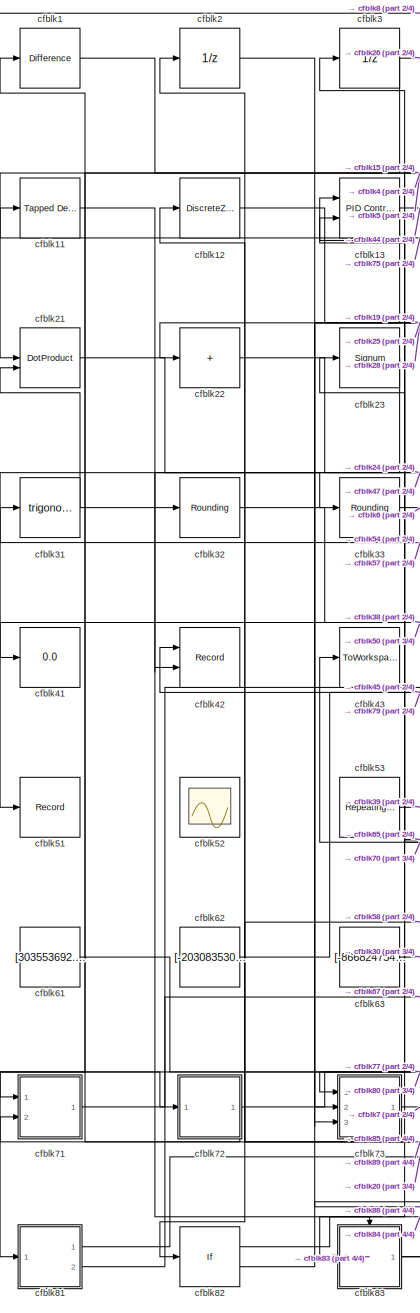
[diagram: root canvas - part 1/4, left side, full height]
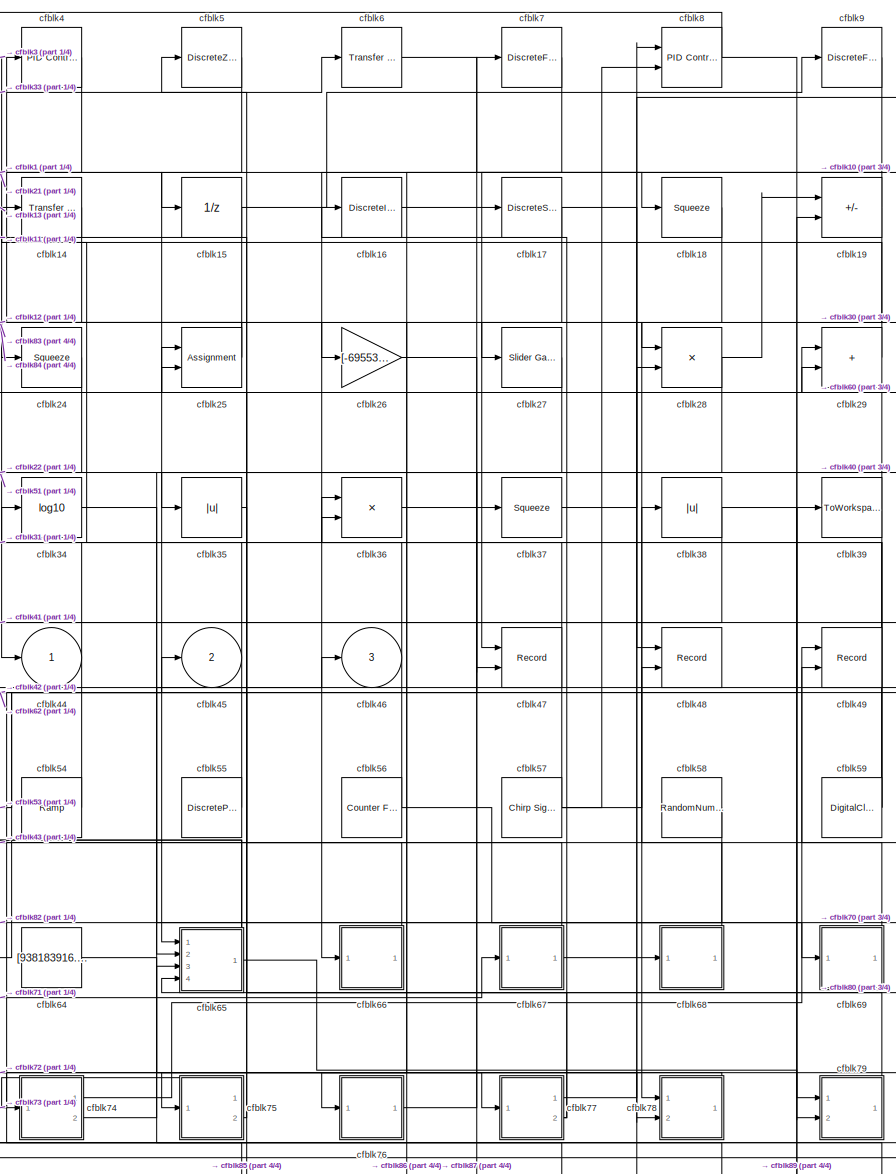
[diagram: root canvas - part 2/4, center side, full height]
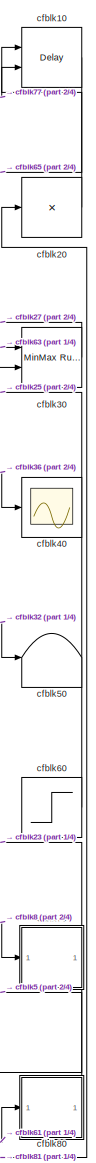
[diagram: root canvas - part 3/4, right side, full height]
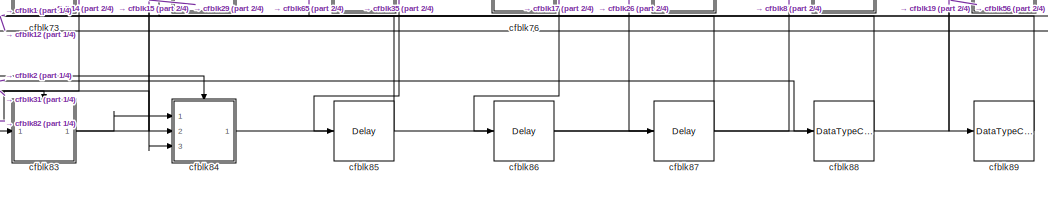
[diagram: root canvas - part 4/4, bottom center region]
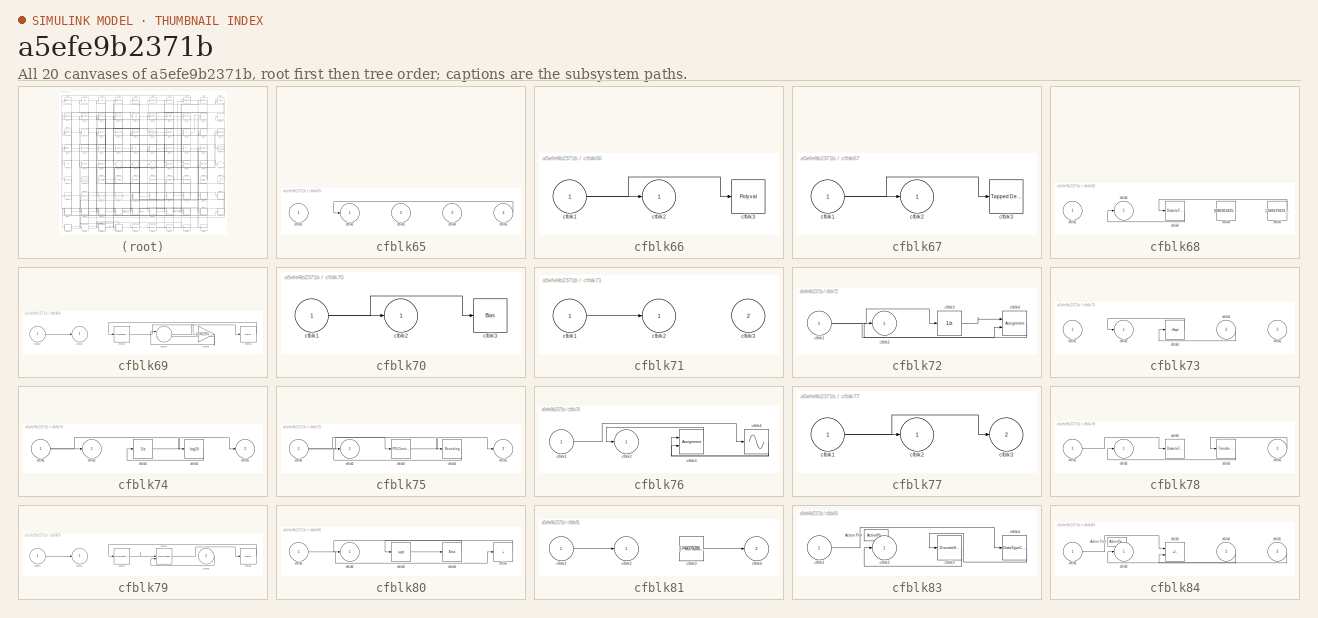
[diagram: thumbnail index - all 20 canvases of the model, root first then tree order]
MODEL slx_a5efe9b2371b
KIND model
CONFIG AbsTol = auto
CONFIG EnableMultiTasking = off
CONFIG FixedStep = auto
CONFIG MaxStep = auto
CONFIG MinStep = auto
CONFIG RelTol = 1e-3
CONFIG SampleTimeConstraint = Unconstrained
CONFIG SolverName = VariableStepAuto
CONFIG StartTime = 0.0
CONFIG StopTime = 10.0
BLOCK [Reference] cfblk1  REF=simulink/Discrete/Difference
  Ports = [1, 1]
  SourceBlock = simulink/Discrete/Difference
  SourceProductBaseCode = SL
  SourceType = Difference
BLOCK [Delay] cfblk10
  DelayLengthSource = Input port
  InputPortMap = u0,p1
  Ports = [2, 1]
  SampleTime = 1
BLOCK [Reference] cfblk11  REF=simulink/Discrete/Tapped Delay
  Ports = [1, 1]
  SourceBlock = simulink/Discrete/Tapped Delay
  SourceProductBaseCode = SL
  SourceType = Tapped Delay Line
BLOCK [DiscreteZeroPole] cfblk12
  Gain = 1
  Poles = [0 0.5]
BLOCK [Reference] cfblk13  REF=slpidlib/PID Controller (2DOF)
  Ports = [2, 1]
  SourceBlock = slpidlib/PID Controller (2DOF)
  SourceProductBaseCode = SL
  SourceType = PID 2dof
BLOCK [Reference] cfblk14  REF=simulink/Discrete/Transfer Fcn
Real Zero
  Ports = [1, 1]
  SourceBlock = simulink/Discrete/Transfer Fcn\nReal Zero
  SourceProductBaseCode = SL
  SourceType = Transfer Fcn Real Zero
BLOCK [UnitDelay] cfblk15
  HasFrameUpgradeWarning = on
BLOCK [DiscreteIntegrator] cfblk16
  ICPrevOutput = DiscIntNeverNeededParam
  ICPrevScaledInput = DiscIntNeverNeededParam
  InitialConditionSetting = Auto
  Ports = [1, 1]
BLOCK [DiscreteStateSpace] cfblk17
BLOCK [Squeeze] cfblk18
BLOCK [Sum] cfblk19
  IconShape = rectangular
  Inputs = --
  Ports = [2, 1]
BLOCK [UnitDelay] cfblk2
  HasFrameUpgradeWarning = on
BLOCK [Product] cfblk20
  Inputs = *
  Ports = [1, 1]
BLOCK [DotProduct] cfblk21
  OutDataTypeStr = Inherit: Inherit via internal rule
BLOCK [Sum] cfblk22
  IconShape = rectangular
  Inputs = +
  Ports = [1, 1]
BLOCK [Signum] cfblk23
BLOCK [Squeeze] cfblk24
BLOCK [Assignment] cfblk25
  DiagnosticForDimensions = Warning
  IndexOptions = Index vector (dialog)
  Indices = 1
  OutputSizes = 1
  Ports = [2, 1]
BLOCK [Gain] cfblk26
  Gain = [-695534286.654844]
BLOCK [Reference] cfblk27  REF=simulink/Math
Operations/Slider
Gain
  Ports = [1, 1]
  SourceBlock = simulink/Math\nOperations/Slider\nGain
  SourceProductBaseCode = SL
  SourceType = Slider Gain
BLOCK [Product] cfblk28
  Inputs = **
  Ports = [2, 1]
BLOCK [Sum] cfblk29
  IconShape = rectangular
  Ports = [2, 1]
BLOCK [UnitDelay] cfblk3
  HasFrameUpgradeWarning = on
BLOCK [Reference] cfblk30  REF=simulink/Math
Operations/MinMax
Running
Resettable
  Ports = [2, 1]
  SourceBlock = simulink/Math\nOperations/MinMax\nRunning\nResettable
  SourceProductBaseCode = SL
  SourceType = MinMax Running Resettable
BLOCK [Trigonometry] cfblk31
  Ports = [1, 1]
BLOCK [Rounding] cfblk32
BLOCK [Rounding] cfblk33
BLOCK [Math] cfblk34
  Operator = log10
  Ports = [1, 1]
BLOCK [Abs] cfblk35
  SaturateOnIntegerOverflow = off
BLOCK [Product] cfblk36
  Ports = [2, 1]
BLOCK [Squeeze] cfblk37
BLOCK [Abs] cfblk38
  SaturateOnIntegerOverflow = off
BLOCK [ToWorkspace] cfblk39
  FixptAsFi = on
  MaxDataPoints = inf
  Ports = [1]
  SampleTime = -1
  SaveFormat = Timeseries
  VariableName = tcuungb
BLOCK [Reference] cfblk4  REF=slpidlib/PID Controller
  Ports = [1, 1]
  SourceBlock = slpidlib/PID Controller
  SourceProductBaseCode = SL
  SourceType = PID 1dof
BLOCK [Scope] cfblk40
  Floating = off
  NumInputPorts = 1
  Ports = [1]
BLOCK [Display] cfblk41
  Decimation = 1
  Ports = [1]
BLOCK [Record] cfblk42
  CompatibilityTag = XY
  FileSettingsInternal = {"entries":[{"content":{"excelSettings":{"content":{},"type":"Streamout.ExcelSettings"}},"type":"Streamout.FileSettingStorage","uuid":"e9bfc827-84cd-43ef-a664-5009a45e0491"}],"packageUris":["http://schema.mathworks.com/mf0/streamout_blocks/R2020a"],"version":"1.0"}
  Layout = [1 1]
  Ports = [2]
  SignalsInternal = {"entries":[{"content":{"signals":[{"content":{"blockPath":["sampleModel13/cfblk42"],"channel":[],"dimensions":[1],"domain":"sampleModel13/cfblk42","lineColor":"#a2142f","plots":[1],"port":1,"sid":[""],"signalID":525,"signalName":"cfblk79"},"type":"RecordBlkView.Signal","uuid":"7c6a9f3b-0145-4b1e-bec1-7fc3d7066293"},{"content":{"blockPath":["sampleModel13/cfblk42"],"channel":[],"dimensions":[1],"d...<+377ch>
  VisualizationBindings = {"xyplotplugin":{"info":[{"series":[{"bindingParametersList":[{"parameter":"X-Axis","signalID":525,"signalName":"cfblk79"},{"parameter":"Y-Axis","signalID":529,"signalName":"cfblk23"}],"seriesID":34704}],"subplotID":1}]}}
BLOCK [ToWorkspace] cfblk43
  FixptAsFi = on
  MaxDataPoints = inf
  Ports = [1]
  SampleTime = -1
  SaveFormat = Timeseries
  VariableName = qabdlrw
BLOCK [Outport] cfblk44
BLOCK [Outport] cfblk45
  Port = 2
BLOCK [Outport] cfblk46
  Port = 3
BLOCK [Record] cfblk47
  CompatibilityTag = XY
  FileSettingsInternal = {"entries":[{"content":{"excelSettings":{"content":{},"type":"Streamout.ExcelSettings"}},"type":"Streamout.FileSettingStorage","uuid":"d26ff546-9c53-4afb-8b40-64bc20b1f95b"}],"packageUris":["http://schema.mathworks.com/mf0/streamout_blocks/R2020a"],"version":"1.0"}
  Layout = [1 1]
  Ports = [2]
  SignalsInternal = {"entries":[{"content":{"signals":[{"content":{"blockPath":["sampleModel13/cfblk47"],"channel":[],"dimensions":[1],"domain":"sampleModel13/cfblk47","lineColor":"#a2142f","plots":[1],"port":1,"sid":[""],"signalID":533,"signalName":"cfblk16"},"type":"RecordBlkView.Signal","uuid":"e2af501a-2b88-48ca-989d-f3ec0a755c22"},{"content":{"blockPath":["sampleModel13/cfblk47"],"channel":[],"dimensions":[1],"d...<+377ch>
  VisualizationBindings = {"xyplotplugin":{"info":[{"series":[{"bindingParametersList":[{"parameter":"X-Axis","signalID":533,"signalName":"cfblk16"},{"parameter":"Y-Axis","signalID":537,"signalName":"cfblk22"}],"seriesID":25821}],"subplotID":1}]}}
BLOCK [Record] cfblk48
  CompatibilityTag = XY
  FileSettingsInternal = {"entries":[{"content":{"excelSettings":{"content":{},"type":"Streamout.ExcelSettings"}},"type":"Streamout.FileSettingStorage","uuid":"84ac7db2-e39d-4170-a59e-58bceac4e3d5"}],"packageUris":["http://schema.mathworks.com/mf0/streamout_blocks/R2020a"],"version":"1.0"}
  Layout = [1 1]
  Ports = [2]
  SignalsInternal = {"entries":[{"content":{"signals":[{"content":{"blockPath":["sampleModel13/cfblk48"],"channel":[],"dimensions":[1],"domain":"sampleModel13/cfblk48","lineColor":"#a2142f","plots":[1],"port":1,"sid":[""],"signalID":541,"signalName":"cfblk17"},"type":"RecordBlkView.Signal","uuid":"dc910b5f-9720-4168-a4d2-2d61a674a1f4"},{"content":{"blockPath":["sampleModel13/cfblk48"],"channel":[],"dimensions":[1],"d...<+377ch>
  VisualizationBindings = {"xyplotplugin":{"info":[{"series":[{"bindingParametersList":[{"parameter":"X-Axis","signalID":541,"signalName":"cfblk17"},{"parameter":"Y-Axis","signalID":545,"signalName":"cfblk57"}],"seriesID":20993}],"subplotID":1}]}}
BLOCK [Record] cfblk49
  CompatibilityTag = XY
  FileSettingsInternal = {"entries":[{"content":{"excelSettings":{"content":{},"type":"Streamout.ExcelSettings"}},"type":"Streamout.FileSettingStorage","uuid":"d39809e0-c0c4-468a-82ea-ae73fdf320d9"}],"packageUris":["http://schema.mathworks.com/mf0/streamout_blocks/R2020a"],"version":"1.0"}
  Layout = [1 1]
  Ports = [2]
  SignalsInternal = {"entries":[{"content":{"signals":[{"content":{"blockPath":["sampleModel13/cfblk49"],"channel":[],"dimensions":[1],"domain":"sampleModel13/cfblk49","lineColor":"#a2142f","plots":[1],"port":1,"sid":[""],"signalID":561,"signalName":"cfblk74:1"},"type":"RecordBlkView.Signal","uuid":"820104ea-1f0b-444c-b7ec-f69593188683"},{"content":{"blockPath":["sampleModel13/cfblk49"],"channel":[],"dimensions":[1],...<+379ch>
  VisualizationBindings = {"xyplotplugin":{"info":[{"series":[{"bindingParametersList":[{"parameter":"X-Axis","signalID":561,"signalName":"cfblk74:1"},{"parameter":"Y-Axis","signalID":565,"signalName":"cfblk69"}],"seriesID":46801}],"subplotID":1}]}}
BLOCK [DiscreteZeroPole] cfblk5
  Gain = 1
  Poles = [0 0.5]
BLOCK [Terminator] cfblk50
BLOCK [Record] cfblk51
  FileSettingsInternal = {"entries":[{"content":{"excelSettings":{"content":{},"type":"Streamout.ExcelSettings"}},"type":"Streamout.FileSettingStorage","uuid":"9c6b9cda-3d95-4183-848a-e524a85caf7d"}],"packageUris":["http://schema.mathworks.com/mf0/streamout_blocks/R2020a"],"version":"1.0"}
  Ports = [1]
  SignalsInternal = {"entries":[{"content":{"signals":[{"content":{"blockPath":["sampleModel13/cfblk51"],"channel":[],"dimensions":[1],"domain":"sampleModel13/cfblk51","lineColor":"#4dbeee","plots":[1],"port":1,"sid":[""],"signalID":549,"signalName":"cfblk24"},"type":"RecordBlkView.Signal","uuid":"9af92a03-3abb-4f5c-b072-6b69d8a9a553"}]},"type":"RecordBlkView.InputSignals","uuid":"b6327323-7065-4157-aefa-aec12f4f8419...<+94ch>
  VisualizationBindings = {"sparklinesplugin":{"info":[{"bindingParametersList":[],"subplotID":1}]}}
BLOCK [Scope] cfblk52
  Floating = on
  NumInputPorts = 1
  Ports = []
BLOCK [Reference] cfblk53  REF=simulink/Sources/Repeating
Sequence
Stair
  Ports = [0, 1]
  SourceBlock = simulink/Sources/Repeating\nSequence\nStair
  SourceProductBaseCode = SL
  SourceType = Repeating Sequence Stair
BLOCK [Reference] cfblk54  REF=simulink/Sources/Ramp
  Ports = [0, 1]
  SourceBlock = simulink/Sources/Ramp
  SourceProductBaseCode = SL
  SourceType = Ramp
BLOCK [DiscretePulseGenerator] cfblk55
  Amplitude = [-421699013.647603]
  Period = [49786801.570837]
  PhaseDelay = [8.000000]
  Ports = [0, 1]
  PulseType = Time based
  PulseWidth = 5
BLOCK [Reference] cfblk56  REF=simulink/Sources/Counter
Free-Running
  Ports = [0, 1]
  SourceBlock = simulink/Sources/Counter\nFree-Running
  SourceProductBaseCode = SL
  SourceType = Counter Free-Running
BLOCK [Reference] cfblk57  REF=simulink/Sources/Chirp Signal
  Ports = [0, 1]
  SourceBlock = simulink/Sources/Chirp Signal
  SourceProductBaseCode = SL
  SourceType = chirp
BLOCK [RandomNumber] cfblk58
  Mean = [58801.248137]
  SampleTime = 0.1
  Seed = [462606736.000000]
  Variance = [34320.822051]
BLOCK [DigitalClock] cfblk59
BLOCK [Reference] cfblk6  REF=simulink/Discrete/Transfer Fcn
First Order
  Ports = [1, 1]
  SourceBlock = simulink/Discrete/Transfer Fcn\nFirst Order
  SourceProductBaseCode = SL
  SourceType = First Order Transfer Fcn
BLOCK [Step] cfblk60
  After = [135558063.741372]
  Before = [359141239.208511]
  SampleTime = 0
  Time = [19.000000]
BLOCK [Constant] cfblk61
  SampleTime = 1
  Value = [303553692.261086]
BLOCK [Constant] cfblk62
  SampleTime = 1
  Value = [-203083530.176389]
BLOCK [Constant] cfblk63
  SampleTime = 1
  Value = [-866824754.096789]
BLOCK [Constant] cfblk64
  SampleTime = 1
  Value = [938183916.908952]
BLOCK [SubSystem] cfblk65
  Ports = [4, 1]
  RequestExecContextInheritance = off
BLOCK [Inport] cfblk65/cfblk1
BLOCK [Outport] cfblk65/cfblk2
BLOCK [Inport] cfblk65/cfblk3
  Port = 2
BLOCK [Inport] cfblk65/cfblk4
  Port = 3
BLOCK [Inport] cfblk65/cfblk5
  Port = 4
BLOCK [SubSystem] cfblk66
  Ports = [1, 1]
  RequestExecContextInheritance = off
BLOCK [Inport] cfblk66/cfblk1
BLOCK [Outport] cfblk66/cfblk2
BLOCK [Polyval] cfblk66/cfblk3
  Coefs = [ +2.081618890e-019, -1.441693666e-014, +4.719686976e-010, -8.536869453e-006, +1.621573104e-001, -8.087801117e+001 ]
BLOCK [SubSystem] cfblk67
  Ports = [1, 1]
  RequestExecContextInheritance = off
BLOCK [Inport] cfblk67/cfblk1
BLOCK [Outport] cfblk67/cfblk2
BLOCK [Reference] cfblk67/cfblk3  REF=simulink/Discrete/Tapped Delay
  Ports = [1, 1]
  SourceBlock = simulink/Discrete/Tapped Delay
  SourceProductBaseCode = SL
  SourceType = Tapped Delay Line
BLOCK [SubSystem] cfblk68
  Ports = [1, 1]
  RequestExecContextInheritance = off
BLOCK [Inport] cfblk68/cfblk1
BLOCK [Outport] cfblk68/cfblk2
BLOCK [DiscreteFir] cfblk68/cfblk3
  InputPortMap = u0
  OutputPortMap = o0
  Ports = [1, 1]
  SampleTime = 1
BLOCK [Constant] cfblk68/cfblk4
  SampleTime = 1
  Value = [686361825.741774]
BLOCK [Constant] cfblk68/cfblk5
  SampleTime = 1
  Value = [-946279231.694788]
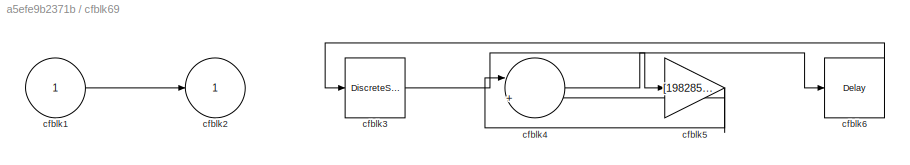
BLOCK [SubSystem] cfblk69
  Ports = [1, 1]
  RequestExecContextInheritance = off
BLOCK [Inport] cfblk69/cfblk1
BLOCK [Outport] cfblk69/cfblk2
BLOCK [DiscreteStateSpace] cfblk69/cfblk3
BLOCK [Sum] cfblk69/cfblk4
  Inputs = |++
  Ports = [2, 1]
BLOCK [Gain] cfblk69/cfblk5
  Gain = [198285018.617187]
BLOCK [Delay] cfblk69/cfblk6
  InputPortMap = u0
  Ports = [1, 1]
  SampleTime = 1
BLOCK [DiscreteFilter] cfblk7
  InputPortMap = u0
  Ports = [1, 1]
  SampleTime = 1
BLOCK [SubSystem] cfblk70
  Ports = [1, 1]
  RequestExecContextInheritance = off
BLOCK [Inport] cfblk70/cfblk1
BLOCK [Outport] cfblk70/cfblk2
BLOCK [Bias] cfblk70/cfblk3
  Bias = [929701414.537709]
  SaturateOnIntegerOverflow = off
BLOCK [SubSystem] cfblk71
  Ports = [2, 1]
  RequestExecContextInheritance = off
BLOCK [Inport] cfblk71/cfblk1
BLOCK [Outport] cfblk71/cfblk2
BLOCK [Inport] cfblk71/cfblk3
  Port = 2
BLOCK [SubSystem] cfblk72
  Ports = [1, 1]
  RequestExecContextInheritance = off
BLOCK [Inport] cfblk72/cfblk1
BLOCK [Outport] cfblk72/cfblk2
BLOCK [UnitDelay] cfblk72/cfblk3
  HasFrameUpgradeWarning = on
BLOCK [Assignment] cfblk72/cfblk4
  DiagnosticForDimensions = Warning
  IndexOptions = Index vector (dialog)
  Indices = 1
  OutputSizes = 1
  Ports = [2, 1]
BLOCK [SubSystem] cfblk73
  Ports = [3, 1]
  RequestExecContextInheritance = off
BLOCK [Inport] cfblk73/cfblk1
BLOCK [Outport] cfblk73/cfblk2
BLOCK [Sqrt] cfblk73/cfblk3
  AlgorithmType = Newton-Raphson
  Operator = rSqrt
BLOCK [Inport] cfblk73/cfblk4
  Port = 2
BLOCK [Inport] cfblk73/cfblk5
  Port = 3
BLOCK [SubSystem] cfblk74
  Ports = [1, 2]
  RequestExecContextInheritance = off
BLOCK [Inport] cfblk74/cfblk1
BLOCK [Outport] cfblk74/cfblk2
BLOCK [UnitDelay] cfblk74/cfblk3
  HasFrameUpgradeWarning = on
BLOCK [Math] cfblk74/cfblk4
  Operator = log10
  Ports = [1, 1]
BLOCK [Outport] cfblk74/cfblk5
  Port = 2
BLOCK [SubSystem] cfblk75
  Ports = [1, 2]
  RequestExecContextInheritance = off
BLOCK [Inport] cfblk75/cfblk1
BLOCK [Outport] cfblk75/cfblk2
BLOCK [Reference] cfblk75/cfblk3  REF=slpidlib/PID Controller
  Ports = [1, 1]
  SourceBlock = slpidlib/PID Controller
  SourceProductBaseCode = SL
  SourceType = PID 1dof
BLOCK [Rounding] cfblk75/cfblk4
BLOCK [Outport] cfblk75/cfblk5
  Port = 2
BLOCK [SubSystem] cfblk76
  Ports = [1, 1]
  RequestExecContextInheritance = off
BLOCK [Inport] cfblk76/cfblk1
BLOCK [Outport] cfblk76/cfblk2
BLOCK [Assignment] cfblk76/cfblk3
  DiagnosticForDimensions = Warning
  IndexOptions = Index vector (dialog)
  Indices = 1
  OutputSizes = 1
  Ports = [2, 1]
BLOCK [Sin] cfblk76/cfblk4
  Ports = [1, 1]
  SampleTime = 0
  TimeSource = Use external signal
BLOCK [SubSystem] cfblk77
  Ports = [1, 2]
  RequestExecContextInheritance = off
BLOCK [Inport] cfblk77/cfblk1
BLOCK [Outport] cfblk77/cfblk2
BLOCK [Outport] cfblk77/cfblk3
  Port = 2
BLOCK [SubSystem] cfblk78
  Ports = [2, 1]
  RequestExecContextInheritance = off
BLOCK [Inport] cfblk78/cfblk1
BLOCK [Outport] cfblk78/cfblk2
BLOCK [DiscreteFilter] cfblk78/cfblk3
  InputPortMap = u0
  Ports = [1, 1]
  SampleTime = 1
BLOCK [Reference] cfblk78/cfblk4  REF=simulink/Discrete/Transfer Fcn
Lead or Lag
  Ports = [1, 1]
  SourceBlock = simulink/Discrete/Transfer Fcn\nLead or Lag
  SourceProductBaseCode = SL
  SourceType = Lead or Lag Compensator
BLOCK [Inport] cfblk78/cfblk5
  Port = 2
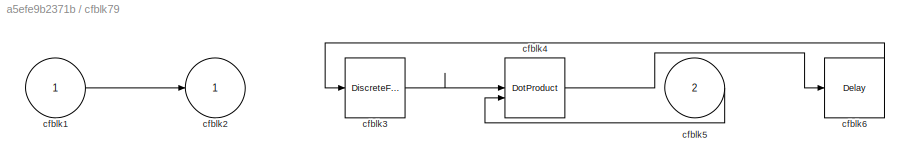
BLOCK [SubSystem] cfblk79
  Ports = [2, 1]
  RequestExecContextInheritance = off
BLOCK [Inport] cfblk79/cfblk1
BLOCK [Outport] cfblk79/cfblk2
BLOCK [DiscreteFir] cfblk79/cfblk3
  InputPortMap = u0
  OutputPortMap = o0
  Ports = [1, 1]
  SampleTime = 1
BLOCK [DotProduct] cfblk79/cfblk4
  OutDataTypeStr = Inherit: Inherit via internal rule
BLOCK [Inport] cfblk79/cfblk5
  Port = 2
BLOCK [Delay] cfblk79/cfblk6
  InputPortMap = u0
  Ports = [1, 1]
  SampleTime = 1
BLOCK [Reference] cfblk8  REF=slpidlib/PID Controller (2DOF)
  Ports = [2, 1]
  SourceBlock = slpidlib/PID Controller (2DOF)
  SourceProductBaseCode = SL
  SourceType = PID 2dof
BLOCK [SubSystem] cfblk80
  Ports = [1, 1]
  RequestExecContextInheritance = off
BLOCK [Inport] cfblk80/cfblk1
BLOCK [Outport] cfblk80/cfblk2
BLOCK [Sqrt] cfblk80/cfblk3
BLOCK [Bias] cfblk80/cfblk4
  Bias = [-420727828.243721]
  SaturateOnIntegerOverflow = off
BLOCK [Sum] cfblk80/cfblk5
  IconShape = rectangular
  Inputs = +
  Ports = [1, 1]
BLOCK [SubSystem] cfblk81
  Ports = [1, 2]
  RequestExecContextInheritance = off
BLOCK [Inport] cfblk81/cfblk1
BLOCK [Outport] cfblk81/cfblk2
BLOCK [Constant] cfblk81/cfblk3
  SampleTime = 1
  Value = [-749079286.719940]
BLOCK [Outport] cfblk81/cfblk4
  Port = 2
BLOCK [If] cfblk82
  IfExpression = u1 >= 0
  Ports = [1, 2]
  SampleTime = 1
BLOCK [SubSystem] cfblk83
  Ports = [1, 1, 0, 0, 0, 0, 0, 1]
  RequestExecContextInheritance = off
  TreatAsAtomicUnit = on
BLOCK [ActionPort] cfblk83/Action Port
  ActionPortLabel = if(u1 >= 0)
BLOCK [Inport] cfblk83/cfblk1
BLOCK [Outport] cfblk83/cfblk2
BLOCK [DiscreteStateSpace] cfblk83/cfblk3
  SampleTime = -1
BLOCK [DataTypeConversion] cfblk83/cfblk4
  RndMeth = Floor
  SaturateOnIntegerOverflow = off
BLOCK [SubSystem] cfblk84
  Ports = [3, 1, 0, 0, 0, 0, 0, 1]
  RequestExecContextInheritance = off
  TreatAsAtomicUnit = on
BLOCK [ActionPort] cfblk84/Action Port
  ActionPortLabel = else
BLOCK [Inport] cfblk84/cfblk1
BLOCK [Outport] cfblk84/cfblk2
BLOCK [Sum] cfblk84/cfblk3
  IconShape = rectangular
  Inputs = -+
  Ports = [2, 1]
BLOCK [Inport] cfblk84/cfblk4
  Port = 2
BLOCK [Inport] cfblk84/cfblk5
  Port = 3
BLOCK [Delay] cfblk85
  InputPortMap = u0
  Ports = [1, 1]
  SampleTime = 1
BLOCK [Delay] cfblk86
  InputPortMap = u0
  Ports = [1, 1]
  SampleTime = 1
BLOCK [Delay] cfblk87
  InputPortMap = u0
  Ports = [1, 1]
  SampleTime = 1
BLOCK [DataTypeConversion] cfblk88
  RndMeth = Floor
  SaturateOnIntegerOverflow = off
BLOCK [DataTypeConversion] cfblk89
  RndMeth = Floor
  SaturateOnIntegerOverflow = off
BLOCK [DiscreteFilter] cfblk9
  InputPortMap = u0
  Ports = [1, 1]
  SampleTime = 1
LINE cfblk10:1 -> cfblk65:1
LINE cfblk11:1 -> cfblk32:1
LINE cfblk12:1 -> cfblk28:1
NET cfblk13:1 -> cfblk44:1, cfblk73:3
LINE cfblk14:1 -> cfblk83:1
NET cfblk15:1 -> cfblk84:3, cfblk9:1
LINE cfblk16:1 -> cfblk47:1
NET cfblk17:1 -> cfblk48:1, cfblk86:1
LINE cfblk18:1 -> cfblk78:1
NET cfblk19:1 -> cfblk17:1, cfblk73:2
LINE cfblk1:1 -> cfblk15:1
LINE cfblk20:1 -> cfblk10:2
LINE cfblk21:1 -> cfblk33:1
LINE cfblk22:1 -> cfblk47:2
LINE cfblk23:1 -> cfblk42:2
LINE cfblk24:1 -> cfblk51:1
NET cfblk25:1 -> cfblk22:1, cfblk24:1
LINE cfblk26:1 -> cfblk87:1
LINE cfblk27:1 -> cfblk65:2
NET cfblk28:1 -> cfblk19:1, cfblk35:1
LINE cfblk29:1 -> cfblk4:1
LINE cfblk2:1 -> cfblk88:1
LINE cfblk30:1 -> cfblk27:1
NET cfblk31:1 -> cfblk21:2, cfblk84:2
LINE cfblk32:1 -> cfblk50:1
LINE cfblk33:1 -> cfblk6:1
LINE cfblk34:1 -> cfblk69:1
LINE cfblk35:1 -> cfblk85:1
LINE cfblk36:1 -> cfblk40:1
LINE cfblk37:1 -> cfblk28:2
NET cfblk38:1 -> cfblk41:1, cfblk79:1
NET cfblk3:1 -> cfblk26:1, cfblk71:1
LINE cfblk4:1 -> cfblk73:1
LINE cfblk53:1 -> cfblk39:1
LINE cfblk54:1 -> cfblk13:1
LINE cfblk55:1 -> cfblk34:1
NET cfblk56:1 -> cfblk14:1, cfblk89:1
NET cfblk57:1 -> cfblk31:1, cfblk48:2, cfblk8:2
LINE cfblk58:1 -> cfblk82:1
NET cfblk59:1 -> cfblk29:1, cfblk36:1, cfblk36:2
LINE cfblk5:1 -> cfblk21:1
LINE cfblk60:1 -> cfblk25:1
LINE cfblk61:1 -> cfblk80:1
LINE cfblk62:1 -> cfblk45:1
LINE cfblk63:1 -> cfblk30:1
LINE cfblk64:1 -> cfblk78:2
LINE cfblk65/cfblk5:1 -> cfblk65/cfblk2:1
NET cfblk65:1 -> cfblk13:2, cfblk3:1, cfblk79:2
NET cfblk66/cfblk1:1 -> cfblk66/cfblk2:1, cfblk66/cfblk3:1
LINE cfblk66:1 -> cfblk25:2
NET cfblk67/cfblk1:1 -> cfblk67/cfblk2:1, cfblk67/cfblk3:1
NET cfblk67:1 -> cfblk43:1, cfblk68:1
LINE cfblk68/cfblk3:1 -> cfblk68/cfblk2:1
LINE cfblk68/cfblk5:1 -> cfblk68/cfblk3:1
LINE cfblk68:1 -> cfblk38:1
LINE cfblk69/cfblk1:1 -> cfblk69/cfblk2:1
LINE cfblk69/cfblk3:1 -> cfblk69/cfblk5:1
LINE cfblk69/cfblk4:1 -> cfblk69/cfblk6:1
NET cfblk69/cfblk5:1 -> cfblk69/cfblk4:1, cfblk69/cfblk4:2
LINE cfblk69/cfblk6:1 -> cfblk69/cfblk3:1
LINE cfblk69:1 -> cfblk49:2
LINE cfblk6:1 -> cfblk18:1
NET cfblk70/cfblk1:1 -> cfblk70/cfblk2:1, cfblk70/cfblk3:1
NET cfblk70:1 -> cfblk23:1, cfblk81:1
LINE cfblk71/cfblk1:1 -> cfblk71/cfblk2:1
LINE cfblk71:1 -> cfblk67:1
NET cfblk72/cfblk1:1 -> cfblk72/cfblk3:1, cfblk72/cfblk4:2
LINE cfblk72/cfblk3:1 -> cfblk72/cfblk4:1
LINE cfblk72/cfblk4:1 -> cfblk72/cfblk2:1
NET cfblk72:1 -> cfblk71:2, cfblk77:1
LINE cfblk73/cfblk3:1 -> cfblk73/cfblk2:1
LINE cfblk73/cfblk4:1 -> cfblk73/cfblk3:1
LINE cfblk73:1 -> cfblk7:1
NET cfblk74/cfblk1:1 -> cfblk74/cfblk2:1, cfblk74/cfblk4:1
LINE cfblk74/cfblk3:1 -> cfblk74/cfblk5:1
LINE cfblk74/cfblk4:1 -> cfblk74/cfblk3:1
LINE cfblk74:1 -> cfblk49:1
LINE cfblk74:2 -> cfblk46:1
NET cfblk75/cfblk1:1 -> cfblk75/cfblk3:1, cfblk75/cfblk4:1
LINE cfblk75/cfblk3:1 -> cfblk75/cfblk5:1
LINE cfblk75/cfblk4:1 -> cfblk75/cfblk2:1
LINE cfblk75:1 -> cfblk74:1
LINE cfblk75:2 -> cfblk11:1
LINE cfblk76/cfblk1:1 -> cfblk76/cfblk4:1
LINE cfblk76/cfblk3:1 -> cfblk76/cfblk2:1
NET cfblk76/cfblk4:1 -> cfblk76/cfblk3:1, cfblk76/cfblk3:2
LINE cfblk76:1 -> cfblk37:1
NET cfblk77/cfblk1:1 -> cfblk77/cfblk2:1, cfblk77/cfblk3:1
LINE cfblk77:1 -> cfblk10:1
NET cfblk77:2 -> cfblk16:1, cfblk65:4
LINE cfblk78/cfblk1:1 -> cfblk78/cfblk3:1
LINE cfblk78/cfblk4:1 -> cfblk78/cfblk2:1
LINE cfblk78/cfblk5:1 -> cfblk78/cfblk4:1
LINE cfblk78:1 -> cfblk75:1
LINE cfblk79/cfblk1:1 -> cfblk79/cfblk2:1
LINE cfblk79/cfblk3:1 -> cfblk79/cfblk4:1
LINE cfblk79/cfblk4:1 -> cfblk79/cfblk6:1
LINE cfblk79/cfblk5:1 -> cfblk79/cfblk4:2
LINE cfblk79/cfblk6:1 -> cfblk79/cfblk3:1
LINE cfblk79:1 -> cfblk42:1
LINE cfblk7:1 -> cfblk66:1
LINE cfblk80/cfblk1:1 -> cfblk80/cfblk5:1
LINE cfblk80/cfblk3:1 -> cfblk80/cfblk4:1
LINE cfblk80/cfblk4:1 -> cfblk80/cfblk2:1
LINE cfblk80/cfblk5:1 -> cfblk80/cfblk3:1
LINE cfblk80:1 -> cfblk5:1
LINE cfblk81/cfblk1:1 -> cfblk81/cfblk2:1
LINE cfblk81/cfblk3:1 -> cfblk81/cfblk4:1
LINE cfblk81:1 -> cfblk20:1
LINE cfblk81:2 -> cfblk30:2
LINE cfblk82:1 -> cfblk83:ifaction
LINE cfblk82:2 -> cfblk84:ifaction
LINE cfblk83/cfblk1:1 -> cfblk83/cfblk4:1
LINE cfblk83/cfblk3:1 -> cfblk83/cfblk2:1
LINE cfblk83/cfblk4:1 -> cfblk83/cfblk3:1
NET cfblk83:1 -> cfblk29:2, cfblk84:1
LINE cfblk84/cfblk1:1 -> cfblk84/cfblk3:1
LINE cfblk84/cfblk4:1 -> cfblk84/cfblk3:2
LINE cfblk84/cfblk5:1 -> cfblk84/cfblk2:1
LINE cfblk84:1 -> cfblk8:1
LINE cfblk85:1 -> cfblk1:1
LINE cfblk86:1 -> cfblk19:2
LINE cfblk87:1 -> cfblk65:3
LINE cfblk88:1 -> cfblk12:1
LINE cfblk89:1 -> cfblk2:1
NET cfblk8:1 -> cfblk70:1, cfblk72:1
LINE cfblk9:1 -> cfblk76:1
note: NET lines group one-source signal fan-out (src -> all destinations, sorted); 1:1 wires keep LINE
